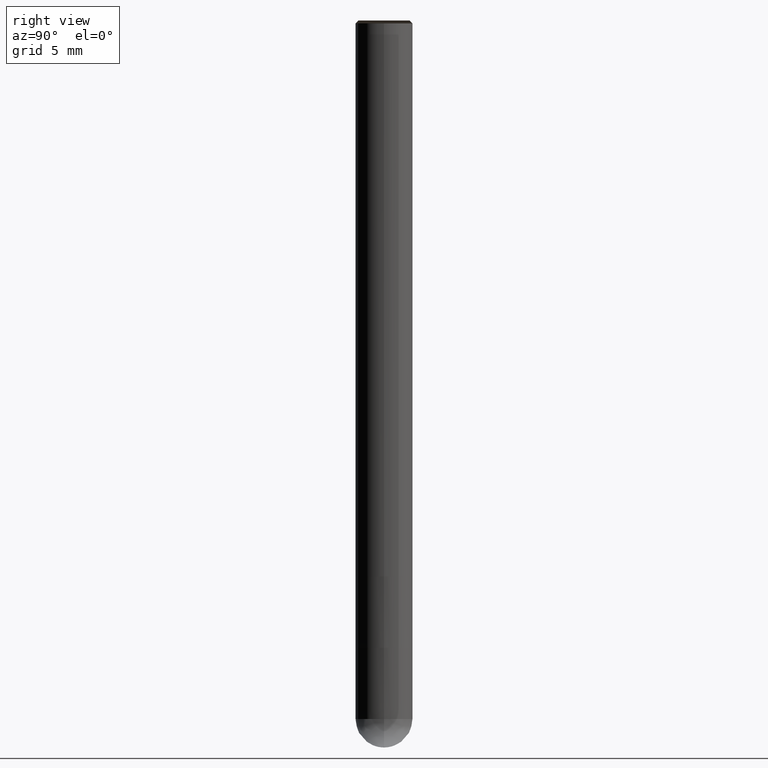
[diagram: clean part render]
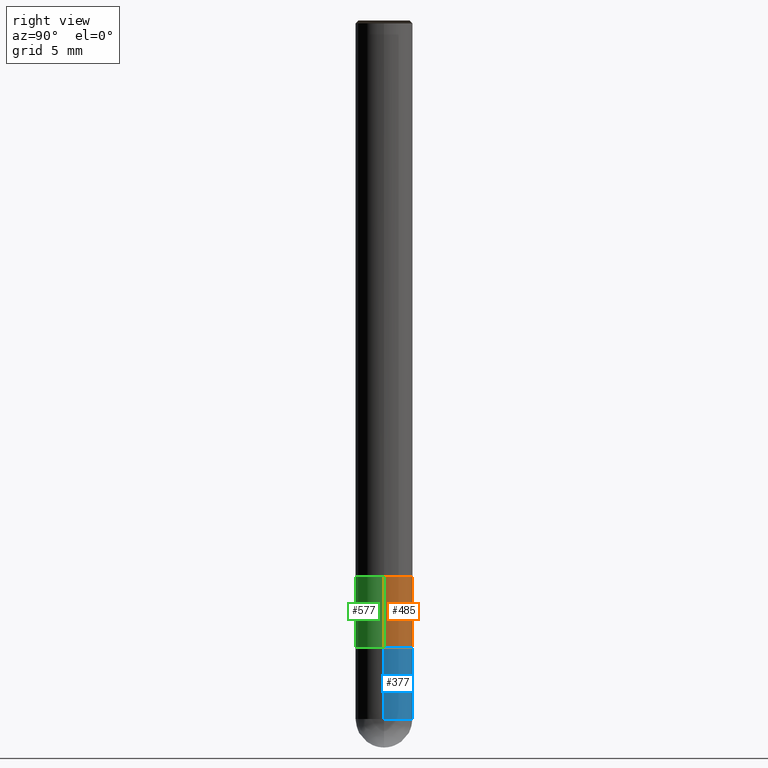
[diagram: same view with three faces highlighted in distinct colors, each labeled with its STEP entity id]
A machine part, right view with three faces highlighted in distinct colors.
Their STEP definitions:

[orange] entity #485 — the highlighted face is a freeform B-spline surface patch.
#297=CARTESIAN_POINT('',(2.0,0.0,-5.0));
#298=CARTESIAN_POINT('',(2.0,2.0,-5.0));
#299=CARTESIAN_POINT('',(0.0,2.0,-5.0));
#300=CARTESIAN_POINT('',(-2.0,2.0,-5.0));
#301=CARTESIAN_POINT('',(-2.0,0.0,-5.0));
#312=CARTESIAN_POINT('',(2.0,0.0,0.0));
#313=CARTESIAN_POINT('',(2.0,2.0,0.0));
#314=CARTESIAN_POINT('',(0.0,2.0,0.0));
#315=CARTESIAN_POINT('',(-2.0,2.0,0.0));
#316=CARTESIAN_POINT('',(-2.0,0.0,0.0));
#466=(
BOUNDED_SURFACE()
B_SPLINE_SURFACE(1,2,(
(#297,#298,#299,#300,#301),
(#312,#313,#314,#315,#316)
), .UNSPECIFIED.,.F.,.F.,.F.)
B_SPLINE_SURFACE_WITH_KNOTS((2,2),(3,2,3),(
0.0,1.0),(
0.0,0.5,1.0), .UNSPECIFIED.)
GEOMETRIC_REPRESENTATION_ITEM()
RATIONAL_B_SPLINE_SURFACE(((1.0,0.707106781187,1.0,0.707106781187,1.0),
(1.0,0.707106781187,1.0,0.707106781187,1.0)
))
REPRESENTATION_ITEM('')
SURFACE()
);
#467=(
BOUNDED_CURVE()
B_SPLINE_CURVE(2,(#301,#300,#299,#298,#297),.UNSPECIFIED.,.F.,.F.)
B_SPLINE_CURVE_WITH_KNOTS((3,2,3),
(0.0,0.5,1.0),.UNSPECIFIED.)
CURVE()
GEOMETRIC_REPRESENTATION_ITEM()
RATIONAL_B_SPLINE_CURVE((1.0,0.707106781187,1.0,0.707106781187,1.0))
REPRESENTATION_ITEM('')
);
#468=(
BOUNDED_CURVE()
B_SPLINE_CURVE(1,(#297,#312),.UNSPECIFIED.,.F.,.F.)
B_SPLINE_CURVE_WITH_KNOTS((2,2),
(0.0,1.0),.UNSPECIFIED.)
CURVE()
GEOMETRIC_REPRESENTATION_ITEM()
RATIONAL_B_SPLINE_CURVE((1.0,1.0))
REPRESENTATION_ITEM('')
);
#469=(
BOUNDED_CURVE()
B_SPLINE_CURVE(2,(#312,#313,#314,#315,#316),.UNSPECIFIED.,.F.,.F.)
B_SPLINE_CURVE_WITH_KNOTS((3,2,3),
(0.0,0.5,1.0),.UNSPECIFIED.)
CURVE()
GEOMETRIC_REPRESENTATION_ITEM()
RATIONAL_B_SPLINE_CURVE((1.0,0.707106781187,1.0,0.707106781187,1.0))
REPRESENTATION_ITEM('')
);
#470=(
BOUNDED_CURVE()
B_SPLINE_CURVE(1,(#316,#301),.UNSPECIFIED.,.F.,.F.)
B_SPLINE_CURVE_WITH_KNOTS((2,2),
(0.0,1.0),.UNSPECIFIED.)
CURVE()
GEOMETRIC_REPRESENTATION_ITEM()
RATIONAL_B_SPLINE_CURVE((1.0,1.0))
REPRESENTATION_ITEM('')
);
#471=VERTEX_POINT('',#297);
#472=VERTEX_POINT('',#301);
#473=VERTEX_POINT('',#312);
#474=VERTEX_POINT('',#316);
#475=EDGE_CURVE('',#472,#471,#467,.T.);
#476=EDGE_CURVE('',#471,#473,#468,.T.);
#477=EDGE_CURVE('',#473,#474,#469,.T.);
#478=EDGE_CURVE('',#474,#472,#470,.T.);
#479=ORIENTED_EDGE('',*,*,#475,.T.);
#480=ORIENTED_EDGE('',*,*,#476,.T.);
#481=ORIENTED_EDGE('',*,*,#477,.T.);
#482=ORIENTED_EDGE('',*,*,#478,.T.);
#483=EDGE_LOOP('',(#479,#480,#481,#482));
#484=FACE_OUTER_BOUND('',#483,.T.);
#485=ADVANCED_FACE('',(#484),#466,.T.);

[blue] entity #377 — the highlighted face is a freeform B-spline surface patch.
#292=CARTESIAN_POINT('',(2.0,0.0,-10.0));
#293=CARTESIAN_POINT('',(2.0,2.0,-10.0));
#294=CARTESIAN_POINT('',(0.0,2.0,-10.0));
#295=CARTESIAN_POINT('',(-2.0,2.0,-10.0));
#296=CARTESIAN_POINT('',(-2.0,0.0,-10.0));
#297=CARTESIAN_POINT('',(2.0,0.0,-5.0));
#298=CARTESIAN_POINT('',(2.0,2.0,-5.0));
#299=CARTESIAN_POINT('',(0.0,2.0,-5.0));
#300=CARTESIAN_POINT('',(-2.0,2.0,-5.0));
#301=CARTESIAN_POINT('',(-2.0,0.0,-5.0));
#358=(
BOUNDED_SURFACE()
B_SPLINE_SURFACE(1,2,(
(#292,#293,#294,#295,#296),
(#297,#298,#299,#300,#301)
), .UNSPECIFIED.,.F.,.F.,.F.)
B_SPLINE_SURFACE_WITH_KNOTS((2,2),(3,2,3),(
0.0,1.0),(
0.0,0.5,1.0), .UNSPECIFIED.)
GEOMETRIC_REPRESENTATION_ITEM()
RATIONAL_B_SPLINE_SURFACE(((1.0,0.707106781187,1.0,0.707106781187,1.0),
(1.0,0.707106781187,1.0,0.707106781187,1.0)
))
REPRESENTATION_ITEM('')
SURFACE()
);
#359=(
BOUNDED_CURVE()
B_SPLINE_CURVE(2,(#296,#295,#294,#293,#292),.UNSPECIFIED.,.F.,.F.)
B_SPLINE_CURVE_WITH_KNOTS((3,2,3),
(0.0,0.5,1.0),.UNSPECIFIED.)
CURVE()
GEOMETRIC_REPRESENTATION_ITEM()
RATIONAL_B_SPLINE_CURVE((1.0,0.707106781187,1.0,0.707106781187,1.0))
REPRESENTATION_ITEM('')
);
#360=(
BOUNDED_CURVE()
B_SPLINE_CURVE(1,(#292,#297),.UNSPECIFIED.,.F.,.F.)
B_SPLINE_CURVE_WITH_KNOTS((2,2),
(0.0,1.0),.UNSPECIFIED.)
CURVE()
GEOMETRIC_REPRESENTATION_ITEM()
RATIONAL_B_SPLINE_CURVE((1.0,1.0))
REPRESENTATION_ITEM('')
);
#361=(
BOUNDED_CURVE()
B_SPLINE_CURVE(2,(#297,#298,#299,#300,#301),.UNSPECIFIED.,.F.,.F.)
B_SPLINE_CURVE_WITH_KNOTS((3,2,3),
(0.0,0.5,1.0),.UNSPECIFIED.)
CURVE()
GEOMETRIC_REPRESENTATION_ITEM()
RATIONAL_B_SPLINE_CURVE((1.0,0.707106781187,1.0,0.707106781187,1.0))
REPRESENTATION_ITEM('')
);
#362=(
BOUNDED_CURVE()
B_SPLINE_CURVE(1,(#301,#296),.UNSPECIFIED.,.F.,.F.)
B_SPLINE_CURVE_WITH_KNOTS((2,2),
(0.0,1.0),.UNSPECIFIED.)
CURVE()
GEOMETRIC_REPRESENTATION_ITEM()
RATIONAL_B_SPLINE_CURVE((1.0,1.0))
REPRESENTATION_ITEM('')
);
#363=VERTEX_POINT('',#292);
#364=VERTEX_POINT('',#296);
#365=VERTEX_POINT('',#297);
#366=VERTEX_POINT('',#301);
#367=EDGE_CURVE('',#364,#363,#359,.T.);
#368=EDGE_CURVE('',#363,#365,#360,.T.);
#369=EDGE_CURVE('',#365,#366,#361,.T.);
#370=EDGE_CURVE('',#366,#364,#362,.T.);
#371=ORIENTED_EDGE('',*,*,#367,.T.);
#372=ORIENTED_EDGE('',*,*,#368,.T.);
#373=ORIENTED_EDGE('',*,*,#369,.T.);
#374=ORIENTED_EDGE('',*,*,#370,.T.);
#375=EDGE_LOOP('',(#371,#372,#373,#374));
#376=FACE_OUTER_BOUND('',#375,.T.);
#377=ADVANCED_FACE('',(#376),#358,.T.);

[green] entity #577 — the highlighted face is a freeform B-spline surface patch.
#297=CARTESIAN_POINT('',(2.0,0.0,-5.0));
#301=CARTESIAN_POINT('',(-2.0,0.0,-5.0));
#309=CARTESIAN_POINT('',(-2.0,-2.0,-5.0));
#310=CARTESIAN_POINT('',(0.0,-2.0,-5.0));
#311=CARTESIAN_POINT('',(2.0,-2.0,-5.0));
#312=CARTESIAN_POINT('',(2.0,0.0,0.0));
#316=CARTESIAN_POINT('',(-2.0,0.0,0.0));
#328=CARTESIAN_POINT('',(-2.0,-2.0,0.0));
#329=CARTESIAN_POINT('',(0.0,-2.0,0.0));
#330=CARTESIAN_POINT('',(2.0,-2.0,0.0));
#558=(
BOUNDED_SURFACE()
B_SPLINE_SURFACE(1,2,(
(#301,#309,#310,#311,#297),
(#316,#328,#329,#330,#312)
), .UNSPECIFIED.,.F.,.F.,.F.)
B_SPLINE_SURFACE_WITH_KNOTS((2,2),(3,2,3),(
0.0,1.0),(
0.0,0.5,1.0), .UNSPECIFIED.)
GEOMETRIC_REPRESENTATION_ITEM()
RATIONAL_B_SPLINE_SURFACE(((1.0,0.707106781187,1.0,0.707106781187,1.0),
(1.0,0.707106781187,1.0,0.707106781187,1.0)
))
REPRESENTATION_ITEM('')
SURFACE()
);
#559=(
BOUNDED_CURVE()
B_SPLINE_CURVE(2,(#297,#311,#310,#309,#301),.UNSPECIFIED.,.F.,.F.)
B_SPLINE_CURVE_WITH_KNOTS((3,2,3),
(0.0,0.5,1.0),.UNSPECIFIED.)
CURVE()
GEOMETRIC_REPRESENTATION_ITEM()
RATIONAL_B_SPLINE_CURVE((1.0,0.707106781187,1.0,0.707106781187,1.0))
REPRESENTATION_ITEM('')
);
#560=(
BOUNDED_CURVE()
B_SPLINE_CURVE(1,(#301,#316),.UNSPECIFIED.,.F.,.F.)
B_SPLINE_CURVE_WITH_KNOTS((2,2),
(0.0,1.0),.UNSPECIFIED.)
CURVE()
GEOMETRIC_REPRESENTATION_ITEM()
RATIONAL_B_SPLINE_CURVE((1.0,1.0))
REPRESENTATION_ITEM('')
);
#561=(
BOUNDED_CURVE()
B_SPLINE_CURVE(2,(#316,#328,#329,#330,#312),.UNSPECIFIED.,.F.,.F.)
B_SPLINE_CURVE_WITH_KNOTS((3,2,3),
(0.0,0.5,1.0),.UNSPECIFIED.)
CURVE()
GEOMETRIC_REPRESENTATION_ITEM()
RATIONAL_B_SPLINE_CURVE((1.0,0.707106781187,1.0,0.707106781187,1.0))
REPRESENTATION_ITEM('')
);
#562=(
BOUNDED_CURVE()
B_SPLINE_CURVE(1,(#312,#297),.UNSPECIFIED.,.F.,.F.)
B_SPLINE_CURVE_WITH_KNOTS((2,2),
(0.0,1.0),.UNSPECIFIED.)
CURVE()
GEOMETRIC_REPRESENTATION_ITEM()
RATIONAL_B_SPLINE_CURVE((1.0,1.0))
REPRESENTATION_ITEM('')
);
#563=VERTEX_POINT('',#297);
#564=VERTEX_POINT('',#301);
#565=VERTEX_POINT('',#312);
#566=VERTEX_POINT('',#316);
#567=EDGE_CURVE('',#563,#564,#559,.T.);
#568=EDGE_CURVE('',#564,#566,#560,.T.);
#569=EDGE_CURVE('',#566,#565,#561,.T.);
#570=EDGE_CURVE('',#565,#563,#562,.T.);
#571=ORIENTED_EDGE('',*,*,#567,.T.);
#572=ORIENTED_EDGE('',*,*,#568,.T.);
#573=ORIENTED_EDGE('',*,*,#569,.T.);
#574=ORIENTED_EDGE('',*,*,#570,.T.);
#575=EDGE_LOOP('',(#571,#572,#573,#574));
#576=FACE_OUTER_BOUND('',#575,.T.);
#577=ADVANCED_FACE('',(#576),#558,.T.);